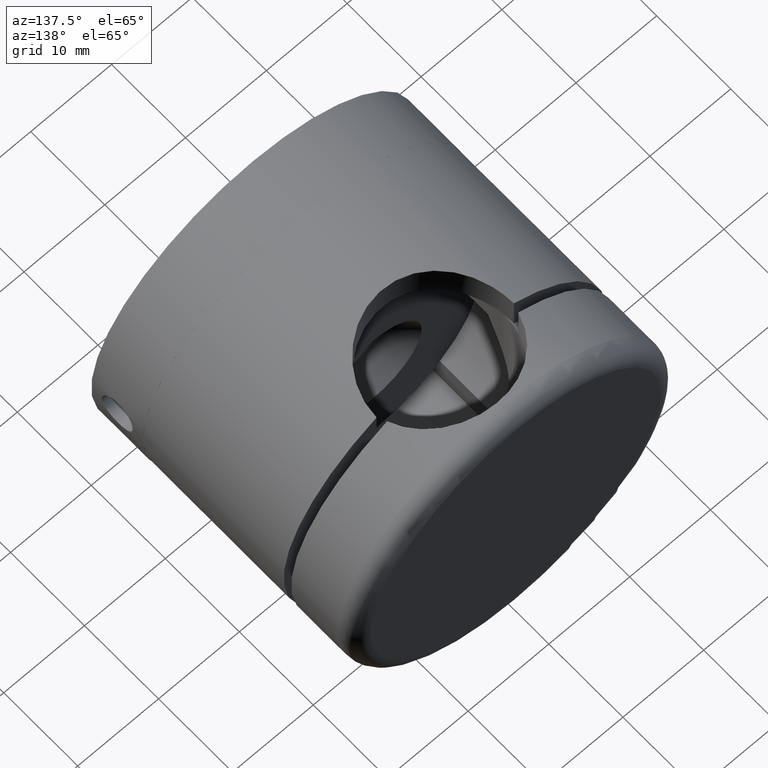
[diagram: clean part render]
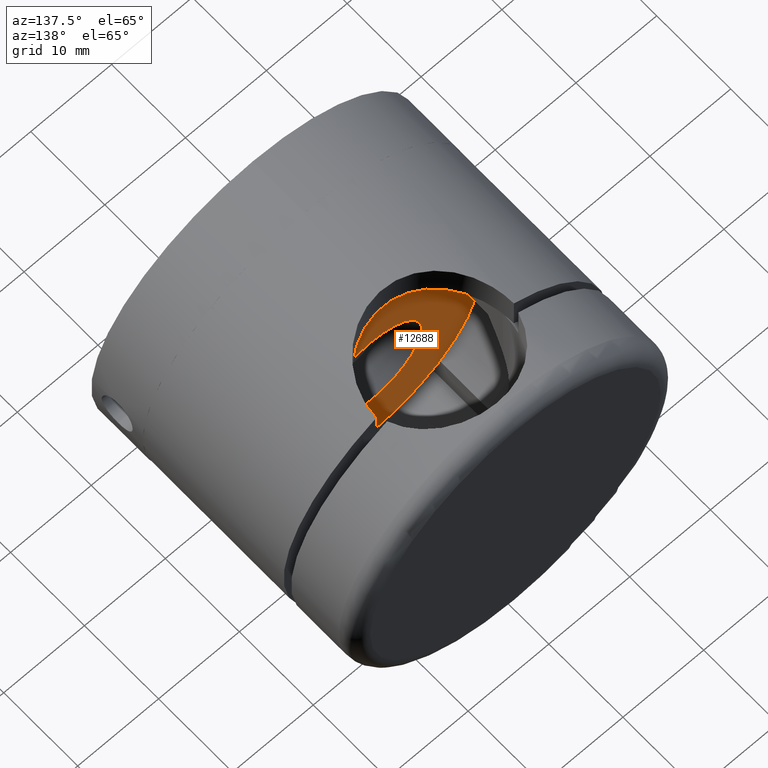
[diagram: same view with one face highlighted and labeled with its STEP entity id]
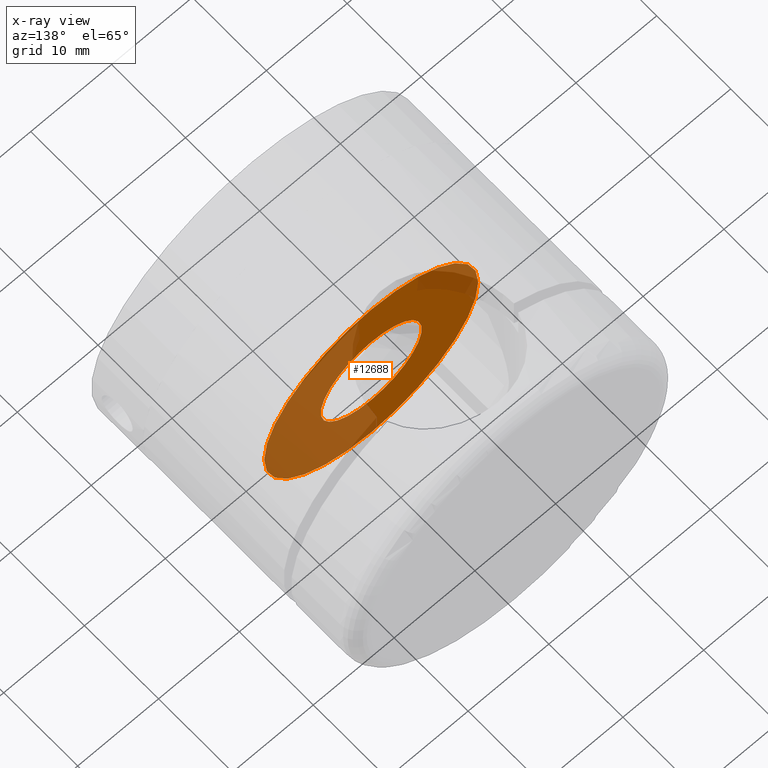
[diagram: x-ray of the same camera — body ghosted, the highlighted face saturated]
A machine part, auxiliary view. The second image highlights one B-rep face of the part: STEP entity #12688.
The next image is the same camera in x-ray: the body ghosted, the highlighted face saturated — about 56% of this face is hidden behind the body in this view.
In plain terms, the highlighted planar face has unit normal (0, 1, 0).
Its self-contained STEP definition (entity closure, byte-faithful):
#1299 = CARTESIAN_POINT ( 'NONE',  ( 0.0000000000000000000, 16.00000000000000000, 6.250000000000000000 ) ) ;
#1555 = CIRCLE ( 'NONE', #14501, 6.250000000000000000 ) ;
#2177 = CARTESIAN_POINT ( 'NONE',  ( 0.0000000000000000000, 16.00000000000000000, 0.0000000000000000000 ) ) ;
#2236 = FACE_OUTER_BOUND ( 'NONE', #8460, .T. ) ;
#2623 = EDGE_CURVE ( 'NONE', #14581, #14581, #10745, .T. ) ;
#3021 = ORIENTED_EDGE ( 'NONE', *, *, #7501, .F. ) ;
#4778 = DIRECTION ( 'NONE',  ( 0.0000000000000000000, 0.0000000000000000000, 1.000000000000000000 ) ) ;
#5819 = AXIS2_PLACEMENT_3D ( 'NONE', #6312, #7766, #13175 ) ;
#6312 = CARTESIAN_POINT ( 'NONE',  ( 0.0000000000000000000, 16.00000000000000000, 0.0000000000000000000 ) ) ;
#6792 = ORIENTED_EDGE ( 'NONE', *, *, #2623, .T. ) ;
#7501 = EDGE_CURVE ( 'NONE', #16431, #16431, #1555, .T. ) ;
#7716 = FACE_BOUND ( 'NONE', #8077, .T. ) ;
#7766 = DIRECTION ( 'NONE',  ( 0.0000000000000000000, 1.000000000000000000, 0.0000000000000000000 ) ) ;
#7839 = CARTESIAN_POINT ( 'NONE',  ( 0.0000000000000000000, 16.00000000000000000, 13.24999999999998400 ) ) ;
#8077 = EDGE_LOOP ( 'NONE', ( #3021 ) ) ;
#8460 = EDGE_LOOP ( 'NONE', ( #6792 ) ) ;
#10745 = CIRCLE ( 'NONE', #5819, 13.24999999999998400 ) ;
#11388 = AXIS2_PLACEMENT_3D ( 'NONE', #15867, #15976, #14586 ) ;
#12688 = ADVANCED_FACE ( 'NONE', ( #7716, #2236 ), #13408, .T. ) ;
#13175 = DIRECTION ( 'NONE',  ( 0.0000000000000000000, 0.0000000000000000000, 1.000000000000000000 ) ) ;
#13408 = PLANE ( 'NONE',  #11388 ) ;
#14349 = DIRECTION ( 'NONE',  ( -0.0000000000000000000, 1.000000000000000000, -0.0000000000000000000 ) ) ;
#14501 = AXIS2_PLACEMENT_3D ( 'NONE', #2177, #14349, #4778 ) ;
#14581 = VERTEX_POINT ( 'NONE', #7839 ) ;
#14586 = DIRECTION ( 'NONE',  ( 0.0000000000000000000, -0.0000000000000000000, 1.000000000000000000 ) ) ;
#15867 = CARTESIAN_POINT ( 'NONE',  ( 0.0000000000000000000, 16.00000000000000000, 0.0000000000000000000 ) ) ;
#15976 = DIRECTION ( 'NONE',  ( 0.0000000000000000000, 1.000000000000000000, 0.0000000000000000000 ) ) ;
#16431 = VERTEX_POINT ( 'NONE', #1299 ) ;